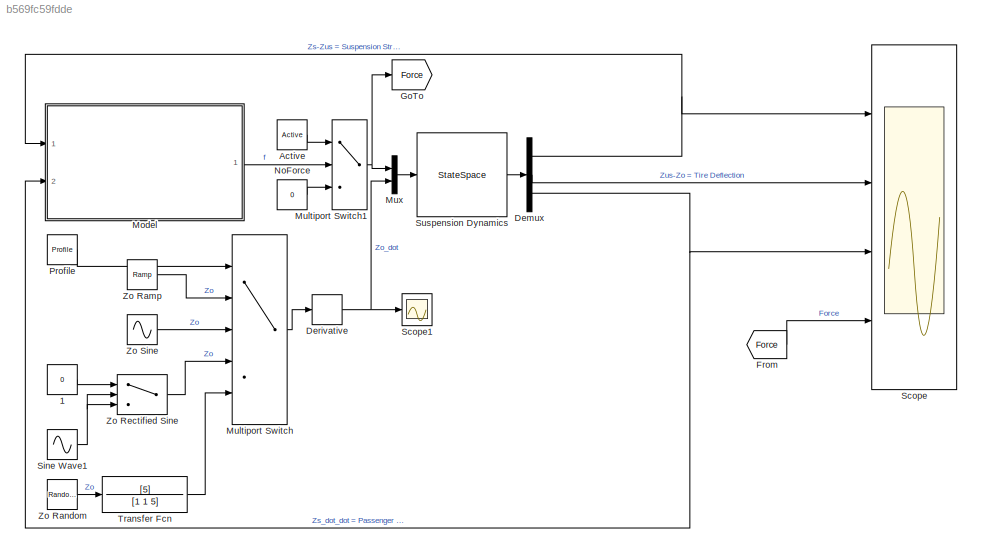
MODEL slx_b569fc59fdde
KIND model
CONFIG AbsTol = auto
CONFIG EnableMultiTasking = off
CONFIG FixedStep = 0.001
CONFIG InitFcn = ActiveSuspensionParameters\nActiveSuspensionMenu
CONFIG MaxStep = auto
CONFIG MinStep = auto
CONFIG RelTol = 1e-3
CONFIG SampleTimeConstraint = Unconstrained
CONFIG SolverName = ode1
CONFIG StartTime = 0.0
CONFIG StopFcn = ActiveSuspensionSystemAutoGrading
CONFIG StopTime = 10.0
BLOCK [Constant] 1
  Value = 0
BLOCK [Constant] Active
  Value = Active
BLOCK [Demux] Demux
  Outputs = 3
  Ports = [1, 3]
BLOCK [Derivative] Derivative
BLOCK [From] From
  GotoTag = Force
BLOCK [Goto] GoTo
  GotoTag = Force
BLOCK [ModelReference] Model
  ModelNameDialog = ActiveSuspensionController
  ModelReferenceVersion = 9.3
  Ports = [2, 1]
BLOCK [MultiPortSwitch] Multiport Switch
  InputSameDT = off
  Inputs = 4
  Ports = [5, 1]
  SaturateOnIntegerOverflow = off
BLOCK [MultiPortSwitch] Multiport Switch1
  InputSameDT = off
  Inputs = 2
  Ports = [3, 1]
  SaturateOnIntegerOverflow = off
BLOCK [Mux] Mux
  DisplayOption = bar
  Inputs = 2
  Ports = [2, 1]
BLOCK [Constant] NoForce
  Value = 0
BLOCK [Constant] Profile
  Value = Profile
BLOCK [Scope] Scope
  Floating = off
  NumInputPorts = 4
  Ports = [4]
  ScopeSpecificationString = Simulink.scopes.TimeScopeBlockCfg('CurrentConfiguration', extmgr.ConfigurationSet(extmgr.Configuration('Core','General UI',true,'FigureColor',[1 1 1]),extmgr.Configuration('Core','Source UI',true),extmgr.Configuration('Sources','WiredSimulink',true,'DataLogging',true,'DataLoggingVariableName','SuspensionSim','DataLoggingSaveFormat','StructureWithTime'),extmgr.Configuration('Visuals','Time Domain',...<+3900ch>
BLOCK [Scope] Scope1
  Floating = off
  NumInputPorts = 1
  Ports = [1]
  ScopeSpecificationString = Simulink.scopes.TimeScopeBlockCfg('CurrentConfiguration', extmgr.ConfigurationSet(extmgr.Configuration('Core','General UI',true),extmgr.Configuration('Core','Source UI',true),extmgr.Configuration('Sources','WiredSimulink',true,'DataLoggingVariableName','ScopeData1'),extmgr.Configuration('Visuals','Time Domain',true,'SerializedDisplays',{struct('MinYLimReal','-0.21491','MaxYLimReal','0.22937','YLab...<+1365ch>
BLOCK [Sin] Sine Wave1
  Amplitude = 0.05
  Frequency = pi
  Ports = [0, 1]
  SampleTime = 0
BLOCK [StateSpace] Suspension Dynamics
  A = [ 0 1 0 0 ; -Kus/Mus -(Cs+Cus)/Mus Ks/Mus Cs/Mus ; 0 -1 0 1 ;\n0 Cs/Ms -Ks/Ms -Cs/Ms ]
  B = [0 -1 ; 1/Mus Cus/Mus ; 0 0 ;-1/Ms 0]
  C = [0 0 1 0 ; 1 0 0 0 ; 0 Cs/Ms -Ks/Ms -Cs/Ms]
  D = [0 0 ; 0 0 ; 0 0]
  InitialCondition = 0
  Ports = [1, 1]
BLOCK [TransferFcn] Transfer Fcn
  Denominator = [1 1 5]
  Numerator = [5]
BLOCK [Reference] Zo Ramp  REF=simulink/Sources/Ramp
  Ports = [0, 1]
  SourceBlock = simulink/Sources/Ramp
  SourceProductBaseCode = SL
  SourceType = Ramp
BLOCK [RandomNumber] Zo Random
  SampleTime = 0.01
  Variance = 0.1
BLOCK [Switch] Zo Rectified Sine
  InputSameDT = off
  SaturateOnIntegerOverflow = off
BLOCK [Sin] Zo Sine
  Amplitude = 0.05
  Frequency = pi
  Ports = [0, 1]
  SampleTime = 0
LINE 1:1 -> Zo Rectified Sine:1
LINE Active:1 -> Multiport Switch1:1
NET Demux:1 -> Model:1, Scope:1
LINE Demux:2 -> Scope:2
NET Demux:3 -> Model:2, Scope:3
NET Derivative:1 -> Mux:2, Scope1:1
LINE From:1 -> Scope:4
LINE Model:1 -> Multiport Switch1:2
NET Multiport Switch1:1 -> GoTo:1, Mux:1
LINE Multiport Switch:1 -> Derivative:1
LINE Mux:1 -> Suspension Dynamics:1
LINE NoForce:1 -> Multiport Switch1:3
LINE Profile:1 -> Multiport Switch:1
NET Sine Wave1:1 -> Zo Rectified Sine:2, Zo Rectified Sine:3
LINE Suspension Dynamics:1 -> Demux:1
LINE Transfer Fcn:1 -> Multiport Switch:5
LINE Zo Ramp:1 -> Multiport Switch:2
LINE Zo Random:1 -> Transfer Fcn:1
LINE Zo Rectified Sine:1 -> Multiport Switch:4
LINE Zo Sine:1 -> Multiport Switch:3
note: NET lines group one-source signal fan-out (src -> all destinations, sorted); 1:1 wires keep LINE
